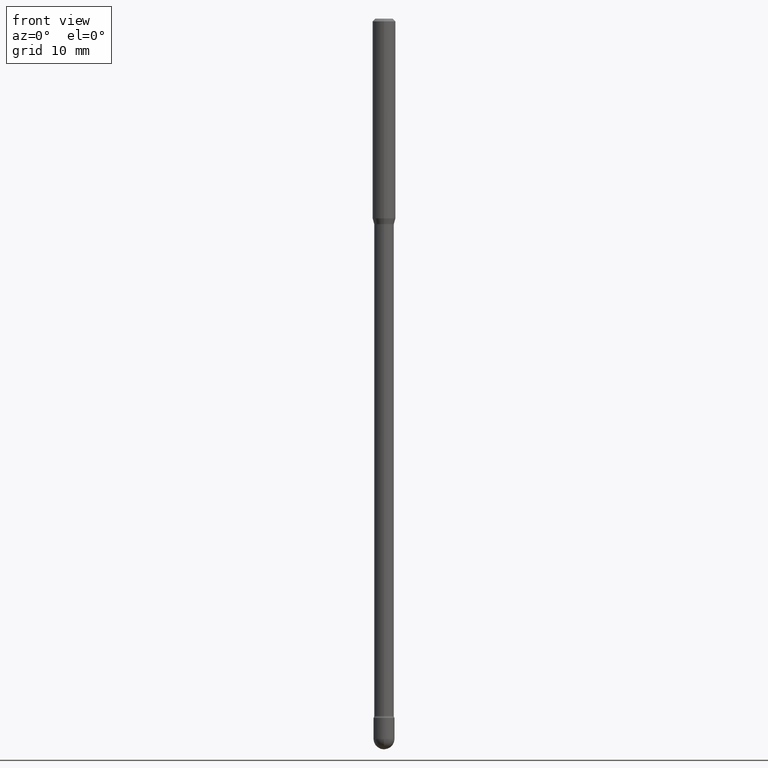
[diagram: clean part render]
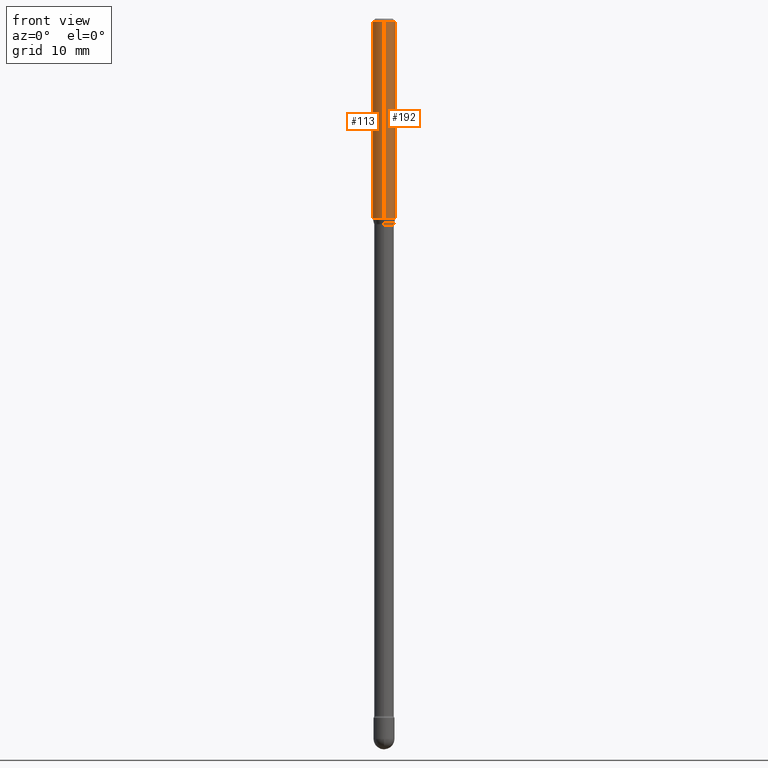
[diagram: same view with one multi-face feature highlighted, each face labeled with its STEP entity id]
A machine part, front view. The highlighted faces form ONE feature: a constant-radius fillet chain: 2 tangent blend faces with common blend radius 1.5875 mm. The faces share edges in the B-rep.
Their STEP definitions:
[1] entity #113 (Cylinder):
#19 = DIRECTION ( 'NONE',  ( -2.445471990974716731E-29, 3.491476778043199636E-15, 1.000000000000000000 ) ) ;
#29 = CIRCLE ( 'NONE', #346, 0.06250000000000000000 ) ;
#32 = LINE ( 'NONE', #373, #369 ) ;
#36 = AXIS2_PLACEMENT_3D ( 'NONE', #317, #49, #235 ) ;
#39 = ORIENTED_EDGE ( 'NONE', *, *, #535, .T. ) ;
#49 = DIRECTION ( 'NONE',  ( -2.445471990974716731E-29, 3.491476778043199636E-15, 1.000000000000000000 ) ) ;
#52 = CARTESIAN_POINT ( 'NONE',  ( 3.668207986462094994E-31, -5.237215167064828371E-17, -0.01500000000000008271 ) ) ;
#55 = AXIS2_PLACEMENT_3D ( 'NONE', #465, #204, #412 ) ;
#72 = DIRECTION ( 'NONE',  ( -2.445471990974716450E-29, 3.491476778043199636E-15, 1.000000000000000000 ) ) ;
#111 = CIRCLE ( 'NONE', #55, 0.06250000000000000000 ) ;
#113 = ADVANCED_FACE ( 'NONE', ( #138 ), #354, .T. ) ;
#131 = VERTEX_POINT ( 'NONE', #209 ) ;
#132 = VECTOR ( 'NONE', #397, 39.37007874015748143 ) ;
#138 = FACE_OUTER_BOUND ( 'NONE', #474, .T. ) ;
#204 = DIRECTION ( 'NONE',  ( -2.445471990974716731E-29, 3.491476778043199636E-15, 1.000000000000000000 ) ) ;
#209 = CARTESIAN_POINT ( 'NONE',  ( 4.440892098500891416E-16, 0.06249999999999616279, -1.093464170676043512 ) ) ;
#221 = EDGE_CURVE ( 'NONE', #303, #306, #32, .T. ) ;
#225 = ORIENTED_EDGE ( 'NONE', *, *, #367, .F. ) ;
#235 = DIRECTION ( 'NONE',  ( -6.982962677686265922E-15, -1.000000000000000000, 3.491476778043198453E-15 ) ) ;
#282 = CARTESIAN_POINT ( 'NONE',  ( 4.440892098500893388E-16, 0.06249999999999993755, -0.01500000000000030129 ) ) ;
#303 = VERTEX_POINT ( 'NONE', #513 ) ;
#306 = VERTEX_POINT ( 'NONE', #334 ) ;
#317 = CARTESIAN_POINT ( 'NONE',  ( -1.169113584055446105E-44, 1.669184350826100908E-30, 4.780733988912460139E-16 ) ) ;
#334 = CARTESIAN_POINT ( 'NONE',  ( -4.364351673553912750E-16, -0.06250000000000005551, -0.01499999999999986587 ) ) ;
#346 = AXIS2_PLACEMENT_3D ( 'NONE', #52, #19, #360 ) ;
#354 = CYLINDRICAL_SURFACE ( 'NONE', #36, 0.06250000000000000000 ) ;
#360 = DIRECTION ( 'NONE',  ( -6.982962677686265922E-15, -1.000000000000000000, 3.483106191921935554E-15 ) ) ;
#361 = ORIENTED_EDGE ( 'NONE', *, *, #545, .F. ) ;
#363 = VERTEX_POINT ( 'NONE', #282 ) ;
#367 = EDGE_CURVE ( 'NONE', #131, #363, #501, .T. ) ;
#369 = VECTOR ( 'NONE', #72, 39.37007874015748143 ) ;
#373 = CARTESIAN_POINT ( 'NONE',  ( -4.364351673553916201E-16, -0.06250000000000000000, 6.962906975189459665E-16 ) ) ;
#397 = DIRECTION ( 'NONE',  ( -2.445471990974716450E-29, 3.491476778043199636E-15, 1.000000000000000000 ) ) ;
#412 = DIRECTION ( 'NONE',  ( -6.982962677686265922E-15, -1.000000000000000000, 4.370956789862821150E-15 ) ) ;
#431 = ORIENTED_EDGE ( 'NONE', *, *, #221, .T. ) ;
#465 = CARTESIAN_POINT ( 'NONE',  ( 2.674036002522660840E-29, -3.817804759537670479E-15, -1.093464170676043068 ) ) ;
#474 = EDGE_LOOP ( 'NONE', ( #225, #39, #431, #361 ) ) ;
#501 = LINE ( 'NONE', #547, #132 ) ;
#513 = CARTESIAN_POINT ( 'NONE',  ( -4.364351673553649467E-16, -0.06250000000000383027, -1.093464170676042846 ) ) ;
#535 = EDGE_CURVE ( 'NONE', #131, #303, #111, .T. ) ;
#545 = EDGE_CURVE ( 'NONE', #363, #306, #29, .T. ) ;
#547 = CARTESIAN_POINT ( 'NONE',  ( 4.440892098500625669E-16, 0.06250000000000000000, 2.598561002635461106E-16 ) ) ;
[2] entity #192 (Cylinder):
#2 = CARTESIAN_POINT ( 'NONE',  ( -1.169113584055446105E-44, 1.669184350826100908E-30, 4.780733988912460139E-16 ) ) ;
#5 = DIRECTION ( 'NONE',  ( -2.445471990974716731E-29, 3.491476778043199636E-15, 1.000000000000000000 ) ) ;
#32 = LINE ( 'NONE', #373, #369 ) ;
#37 = CIRCLE ( 'NONE', #433, 0.06250000000000000000 ) ;
#40 = DIRECTION ( 'NONE',  ( -2.445471990974716731E-29, 3.491476778043199636E-15, 1.000000000000000000 ) ) ;
#67 = CIRCLE ( 'NONE', #145, 0.06250000000000000000 ) ;
#72 = DIRECTION ( 'NONE',  ( -2.445471990974716450E-29, 3.491476778043199636E-15, 1.000000000000000000 ) ) ;
#127 = CARTESIAN_POINT ( 'NONE',  ( 2.674036002522660840E-29, -3.817804759537670479E-15, -1.093464170676043068 ) ) ;
#131 = VERTEX_POINT ( 'NONE', #209 ) ;
#132 = VECTOR ( 'NONE', #397, 39.37007874015748143 ) ;
#134 = EDGE_CURVE ( 'NONE', #303, #131, #37, .T. ) ;
#145 = AXIS2_PLACEMENT_3D ( 'NONE', #255, #5, #423 ) ;
#178 = DIRECTION ( 'NONE',  ( -2.445471990974716731E-29, 3.491476778043199636E-15, 1.000000000000000000 ) ) ;
#192 = ADVANCED_FACE ( 'NONE', ( #337 ), #384, .T. ) ;
#209 = CARTESIAN_POINT ( 'NONE',  ( 4.440892098500891416E-16, 0.06249999999999616279, -1.093464170676043512 ) ) ;
#210 = EDGE_LOOP ( 'NONE', ( #211, #349, #422, #561 ) ) ;
#211 = ORIENTED_EDGE ( 'NONE', *, *, #134, .T. ) ;
#221 = EDGE_CURVE ( 'NONE', #303, #306, #32, .T. ) ;
#255 = CARTESIAN_POINT ( 'NONE',  ( 3.668207986462094994E-31, -5.237215167064828371E-17, -0.01500000000000008271 ) ) ;
#282 = CARTESIAN_POINT ( 'NONE',  ( 4.440892098500893388E-16, 0.06249999999999993755, -0.01500000000000030129 ) ) ;
#298 = AXIS2_PLACEMENT_3D ( 'NONE', #2, #178, #517 ) ;
#303 = VERTEX_POINT ( 'NONE', #513 ) ;
#306 = VERTEX_POINT ( 'NONE', #334 ) ;
#334 = CARTESIAN_POINT ( 'NONE',  ( -4.364351673553912750E-16, -0.06250000000000005551, -0.01499999999999986587 ) ) ;
#337 = FACE_OUTER_BOUND ( 'NONE', #210, .T. ) ;
#349 = ORIENTED_EDGE ( 'NONE', *, *, #367, .T. ) ;
#363 = VERTEX_POINT ( 'NONE', #282 ) ;
#367 = EDGE_CURVE ( 'NONE', #131, #363, #501, .T. ) ;
#369 = VECTOR ( 'NONE', #72, 39.37007874015748143 ) ;
#373 = CARTESIAN_POINT ( 'NONE',  ( -4.364351673553916201E-16, -0.06250000000000000000, 6.962906975189459665E-16 ) ) ;
#384 = CYLINDRICAL_SURFACE ( 'NONE', #298, 0.06250000000000000000 ) ;
#397 = DIRECTION ( 'NONE',  ( -2.445471990974716450E-29, 3.491476778043199636E-15, 1.000000000000000000 ) ) ;
#422 = ORIENTED_EDGE ( 'NONE', *, *, #463, .F. ) ;
#423 = DIRECTION ( 'NONE',  ( -6.982962677686265922E-15, -1.000000000000000000, 3.483106191921935554E-15 ) ) ;
#433 = AXIS2_PLACEMENT_3D ( 'NONE', #127, #40, #520 ) ;
#463 = EDGE_CURVE ( 'NONE', #306, #363, #67, .T. ) ;
#501 = LINE ( 'NONE', #547, #132 ) ;
#513 = CARTESIAN_POINT ( 'NONE',  ( -4.364351673553649467E-16, -0.06250000000000383027, -1.093464170676042846 ) ) ;
#517 = DIRECTION ( 'NONE',  ( -6.982962677686265922E-15, -1.000000000000000000, 3.491476778043198453E-15 ) ) ;
#520 = DIRECTION ( 'NONE',  ( -6.982962677686265922E-15, -1.000000000000000000, 4.370956789862821150E-15 ) ) ;
#547 = CARTESIAN_POINT ( 'NONE',  ( 4.440892098500625669E-16, 0.06250000000000000000, 2.598561002635461106E-16 ) ) ;
#561 = ORIENTED_EDGE ( 'NONE', *, *, #221, .F. ) ;